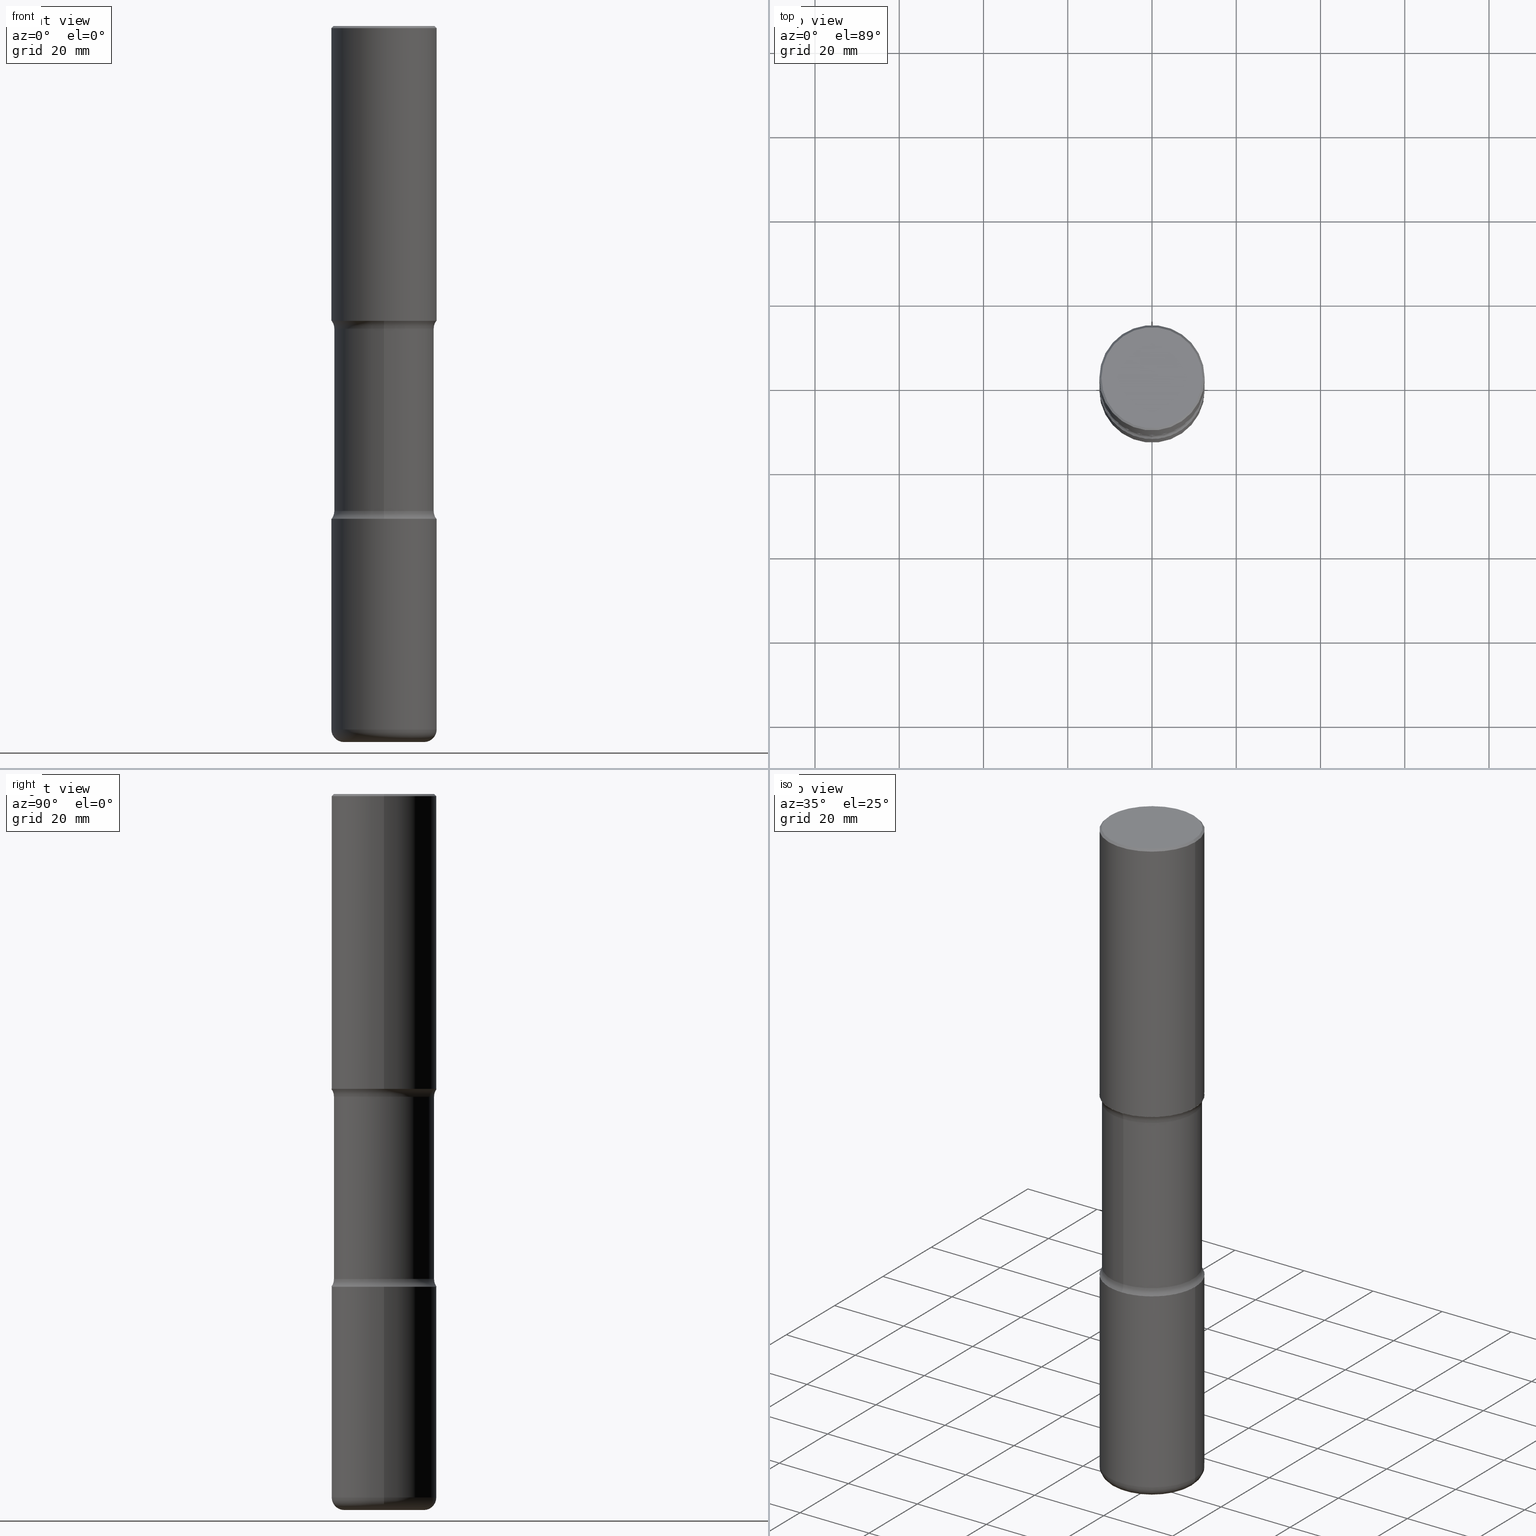
[diagram: canonical four-view strip — front | top / right | iso, engineering-drawing reading convention]
A machine part, canonical four-view strip (front | top / right | iso — engineering-drawing reading convention). The complete STEP part file that produces these views, byte-faithful:
ISO-10303-21;
HEADER;
FILE_DESCRIPTION (( 'STEP AP203' ),
    '1' );
FILE_NAME ('47783.STEP',
    '2024-03-02T09:12:17',
    ( '' ),
    ( '' ),
    'SwSTEP 2.0',
    'SolidWorks 2023',
    '' );
FILE_SCHEMA (( 'CONFIG_CONTROL_DESIGN' ));
ENDSEC;

DATA;
#1 = EDGE_CURVE ( 'NONE', #19, #558, #187, .T. ) ;
#2 = DIRECTION ( 'NONE',  ( 6.982962677686266711E-15, 1.000000000000000000, -3.506115072082477581E-15 ) ) ;
#3 = ORIENTED_EDGE ( 'NONE', *, *, #390, .F. ) ;
#4 = ADVANCED_BREP_SHAPE_REPRESENTATION ( '47783', ( #225, #81, #267, #378 ), #405 ) ;
#5 = PLANE ( 'NONE',  #96 ) ;
#6 = ORIENTED_EDGE ( 'NONE', *, *, #510, .F. ) ;
#7 = AXIS2_PLACEMENT_3D ( 'NONE', #258, #58, #434 ) ;
#8 = EDGE_CURVE ( 'NONE', #47, #467, #394, .T. ) ;
#9 = CARTESIAN_POINT ( 'NONE',  ( 1.126456296193059450E-28, -1.608281049111318039E-14, -4.606299999999999173 ) ) ;
#10 = LINE ( 'NONE', #181, #307 ) ;
#11 = EDGE_CURVE ( 'NONE', #558, #19, #62, .T. ) ;
#12 = DIRECTION ( 'NONE',  ( 1.000000000000000000, -6.982962677686266711E-15, 4.876176775795935793E-29 ) ) ;
#13 = DIRECTION ( 'NONE',  ( -2.445468806185136597E-29, 3.491481338843145583E-15, 1.000000000000000000 ) ) ;
#14 = DIRECTION ( 'NONE',  ( 2.445468806185136597E-29, -3.491481338843145583E-15, -1.000000000000000000 ) ) ;
#15 = ORIENTED_EDGE ( 'NONE', *, *, #545, .F. ) ;
#16 = AXIS2_PLACEMENT_3D ( 'NONE', #113, #159, #368 ) ;
#17 = APPROVAL_PERSON_ORGANIZATION ( #241, #493, #29 ) ;
#18 = CARTESIAN_POINT ( 'NONE',  ( -0.4921500000000002539, -1.602236492482621413E-14, -4.606299999999999173 ) ) ;
#19 = VERTEX_POINT ( 'NONE', #438 ) ;
#20 = PERSON_AND_ORGANIZATION_ROLE ( 'design_owner' ) ;
#21 = LINE ( 'NONE', #233, #417 ) ;
#22 = LINE ( 'NONE', #194, #309 ) ;
#23 = DIRECTION ( 'NONE',  ( 1.000000000000000000, -6.982962677686264344E-15, 0.000000000000000000 ) ) ;
#24 = AXIS2_PLACEMENT_3D ( 'NONE', #167, #77, #36 ) ;
#25 = CARTESIAN_POINT ( 'NONE',  ( 4.137405386529224571E-15, 0.5924999999999843725, -4.531768949423748083 ) ) ;
#26 = CARTESIAN_POINT ( 'NONE',  ( 6.826348879337702763E-29, -1.001898959365239917E-14, -2.830431050576252883 ) ) ;
#27 = APPLICATION_PROTOCOL_DEFINITION ( 'international standard', 'config_control_design', 1994, #101 ) ;
#28 = DIRECTION ( 'NONE',  ( 2.478950746902978790E-29, -3.443533294061476764E-15, -1.000000000000000000 ) ) ;
#29 = APPROVAL_ROLE ( '' ) ;
#30 = DIRECTION ( 'NONE',  ( 1.000000000000000000, -6.982962677686266711E-15, 0.000000000000000000 ) ) ;
#31 = TOROIDAL_SURFACE ( 'NONE', #106, 0.5924999999999999156, 0.1250000000000000278 ) ;
#32 = AXIS2_PLACEMENT_3D ( 'NONE', #56, #532, #406 ) ;
#33 = AXIS2_PLACEMENT_3D ( 'NONE', #50, #498, #408 ) ;
#34 = PRODUCT_DEFINITION ( 'UNKNOWN', '', #43, #325 ) ;
#35 = DIRECTION ( 'NONE',  ( 2.478950746902978790E-29, -3.443533294061476764E-15, -1.000000000000000000 ) ) ;
#36 = DIRECTION ( 'NONE',  ( 6.982962677686265922E-15, 1.000000000000000000, -2.337410048054985186E-15 ) ) ;
#37 = ORIENTED_EDGE ( 'NONE', *, *, #84, .T. ) ;
#38 = CARTESIAN_POINT ( 'NONE',  ( 0.4921500000000002539, -1.305883850354111701E-14, -2.755899999999998240 ) ) ;
#39 = ORIENTED_EDGE ( 'NONE', *, *, #123, .T. ) ;
#40 = CLOSED_SHELL ( 'NONE', ( #323, #185, #464, #202, #411, #206 ) ) ;
#41 = AXIS2_PLACEMENT_3D ( 'NONE', #549, #331, #284 ) ;
#42 = CARTESIAN_POINT ( 'NONE',  ( 6.677512499861319986E-29, -9.710896483781819618E-15, -2.755899999999998684 ) ) ;
#43 = PRODUCT_DEFINITION_FORMATION_WITH_SPECIFIED_SOURCE ( 'ANY', '', #240, .NOT_KNOWN. ) ;
#44 = EDGE_LOOP ( 'NONE', ( #255, #144, #352, #218 ) ) ;
#45 = SHAPE_DEFINITION_REPRESENTATION ( #507, #4 ) ;
#46 = CARTESIAN_POINT ( 'NONE',  ( 3.264535051818492903E-15, 0.4674999999999766009, -6.692899999999999849 ) ) ;
#47 = VERTEX_POINT ( 'NONE', #53 ) ;
#48 = CARTESIAN_POINT ( 'NONE',  ( -3.291838451780658393E-15, -0.4675000000000099076, -2.830431050576251106 ) ) ;
#49 = ORIENTED_EDGE ( 'NONE', *, *, #490, .T. ) ;
#50 = CARTESIAN_POINT ( 'NONE',  ( -4.064845063679523241E-15, -0.5925000000000161249, -4.531768949423743642 ) ) ;
#51 = CIRCLE ( 'NONE', #419, 0.4921500000000003650 ) ;
#52 = EDGE_CURVE ( 'NONE', #90, #558, #10, .T. ) ;
#53 = CARTESIAN_POINT ( 'NONE',  ( 3.436665081823409767E-15, 0.4921499999999841002, -4.606300000000000949 ) ) ;
#54 = CIRCLE ( 'NONE', #494, 0.4921500000000002539 ) ;
#55 = COORDINATED_UNIVERSAL_TIME_OFFSET ( 5, 0, .BEHIND. ) ;
#56 = CARTESIAN_POINT ( 'NONE',  ( 1.126456296193059450E-28, -1.608281049111318039E-14, -4.606299999999999173 ) ) ;
#57 = ORIENTED_EDGE ( 'NONE', *, *, #160, .T. ) ;
#58 = DIRECTION ( 'NONE',  ( -2.445468806185136597E-29, 3.491481338843145583E-15, 1.000000000000000000 ) ) ;
#59 = ORIENTED_EDGE ( 'NONE', *, *, #404, .T. ) ;
#60 = DIRECTION ( 'NONE',  ( -2.445468806185136597E-29, 3.491481338843145583E-15, 1.000000000000000000 ) ) ;
#61 = ORIENTED_EDGE ( 'NONE', *, *, #149, .T. ) ;
#62 = CIRCLE ( 'NONE', #481, 0.4921499999999999209 ) ;
#63 = DIRECTION ( 'NONE',  ( -1.000000000000000000, 6.982962677686265922E-15, 0.000000000000000000 ) ) ;
#64 = ORIENTED_EDGE ( 'NONE', *, *, #316, .F. ) ;
#65 = FACE_OUTER_BOUND ( 'NONE', #313, .T. ) ;
#66 = DIRECTION ( 'NONE',  ( 6.982962677686266711E-15, 1.000000000000000000, -3.443533294061476764E-15 ) ) ;
#67 = ADVANCED_FACE ( 'NONE', ( #542 ), #242, .T. ) ;
#68 = FACE_OUTER_BOUND ( 'NONE', #306, .T. ) ;
#69 = EDGE_CURVE ( 'NONE', #478, #386, #382, .T. ) ;
#70 = AXIS2_PLACEMENT_3D ( 'NONE', #201, #115, #283 ) ;
#71 = CIRCLE ( 'NONE', #32, 0.4921500000000002539 ) ;
#72 = FACE_OUTER_BOUND ( 'NONE', #295, .T. ) ;
#73 = DIRECTION ( 'NONE',  ( -2.445468806185136597E-29, 3.491481338843145583E-15, 1.000000000000000000 ) ) ;
#74 = CARTESIAN_POINT ( 'NONE',  ( -3.131554243005659264E-46, 4.471029511141341874E-32, 1.280553747030123384E-17 ) ) ;
#75 = ADVANCED_FACE ( 'NONE', ( #116 ), #320, .F. ) ;
#76 = AXIS2_PLACEMENT_3D ( 'NONE', #385, #388, #290 ) ;
#77 = DIRECTION ( 'NONE',  ( 2.478950746902978790E-29, -3.443533294061476764E-15, -1.000000000000000000 ) ) ;
#78 = EDGE_LOOP ( 'NONE', ( #61, #49, #259, #342 ) ) ;
#79 = CARTESIAN_POINT ( 'NONE',  ( 1.107980415843712738E-28, -1.582616033701247086E-14, -4.531768949423746307 ) ) ;
#80 = ORIENTED_EDGE ( 'NONE', *, *, #160, .F. ) ;
#81 = MANIFOLD_SOLID_BREP ( 'Body-Move/Copy2[2]', #219 ) ;
#82 = CARTESIAN_POINT ( 'NONE',  ( -0.4721499999999998476, 3.331920641658000829E-15, 1.280553747027805488E-17 ) ) ;
#83 = ORIENTED_EDGE ( 'NONE', *, *, #523, .F. ) ;
#84 = EDGE_CURVE ( 'NONE', #249, #19, #109, .T. ) ;
#85 = PERSON_AND_ORGANIZATION ( #154, #120 ) ;
#86 = AXIS2_PLACEMENT_3D ( 'NONE', #327, #410, #497 ) ;
#87 = CARTESIAN_POINT ( 'NONE',  ( 1.126456296193059450E-28, -1.608281049111318039E-14, -4.606299999999999173 ) ) ;
#88 = LOCAL_TIME ( 4, 12, 17.00000000000000000, #230 ) ;
#89 = ORIENTED_EDGE ( 'NONE', *, *, #404, .F. ) ;
#90 = VERTEX_POINT ( 'NONE', #413 ) ;
#91 = SECURITY_CLASSIFICATION_LEVEL ( 'unclassified' ) ;
#92 = CC_DESIGN_PERSON_AND_ORGANIZATION_ASSIGNMENT ( #85, #560, ( #43 ) ) ;
#93 = DIRECTION ( 'NONE',  ( 1.000000000000000000, -6.860497997771530774E-15, 4.841386073819815477E-29 ) ) ;
#94 = DIRECTION ( 'NONE',  ( -2.445468806185136597E-29, 3.491481338843145583E-15, 1.000000000000000000 ) ) ;
#95 = DIRECTION ( 'NONE',  ( 1.000000000000000000, -6.982962677686265922E-15, 4.876006802227160734E-29 ) ) ;
#96 = AXIS2_PLACEMENT_3D ( 'NONE', #223, #484, #529 ) ;
#97 = ORIENTED_EDGE ( 'NONE', *, *, #69, .T. ) ;
#98 = CARTESIAN_POINT ( 'NONE',  ( -3.376394089603194759E-15, -0.4921500000000101349, -2.755899999999997352 ) ) ;
#99 = EDGE_LOOP ( 'NONE', ( #287, #80 ) ) ;
#100 = CARTESIAN_POINT ( 'NONE',  ( 3.436665081823365591E-15, 0.4921499999999907060, -2.755900000000000460 ) ) ;
#101 = APPLICATION_CONTEXT ( 'configuration controlled 3d designs of mechanical parts and assemblies' ) ;
#102 = ORIENTED_EDGE ( 'NONE', *, *, #69, .F. ) ;
#103 = ADVANCED_FACE ( 'NONE', ( #72 ), #31, .F. ) ;
#104 = APPROVAL_DATE_TIME ( #158, #493 ) ;
#105 = ORIENTED_EDGE ( 'NONE', *, *, #367, .F. ) ;
#106 = AXIS2_PLACEMENT_3D ( 'NONE', #26, #28, #66 ) ;
#107 = CIRCLE ( 'NONE', #319, 0.4674999999999999156 ) ;
#108 = DATE_TIME_ROLE ( 'creation_date' ) ;
#109 = LINE ( 'NONE', #151, #447 ) ;
#110 = EDGE_CURVE ( 'NONE', #469, #19, #21, .T. ) ;
#111 = DIRECTION ( 'NONE',  ( 7.105427357601001859E-15, 1.000000000000000000, -3.491481338843145583E-15 ) ) ;
#112 = CARTESIAN_POINT ( 'NONE',  ( 0.4921499999999999209, -3.446223716380121955E-15, -0.02000000000000006981 ) ) ;
#113 = CARTESIAN_POINT ( 'NONE',  ( 6.826348879337702763E-29, -1.001898959365239917E-14, -2.830431050576252883 ) ) ;
#114 = AXIS2_PLACEMENT_3D ( 'NONE', #381, #250, #344 ) ;
#115 = DIRECTION ( 'NONE',  ( -2.445468806185136597E-29, 3.491481338843145583E-15, 1.000000000000000000 ) ) ;
#116 = FACE_OUTER_BOUND ( 'NONE', #232, .T. ) ;
#117 = DIRECTION ( 'NONE',  ( 6.982962677686265922E-15, 1.000000000000000000, -3.330506545156063496E-15 ) ) ;
#118 = EDGE_LOOP ( 'NONE', ( #268, #427, #450, #168 ) ) ;
#119 = VECTOR ( 'NONE', #445, 39.37007874015748143 ) ;
#120 = ORGANIZATION ( 'UNSPECIFIED', 'UNSPECIFIED', '' ) ;
#121 = DIRECTION ( 'NONE',  ( 1.000000000000000000, -6.982962677686266711E-15, 4.883557194083112901E-29 ) ) ;
#122 = EDGE_LOOP ( 'NONE', ( #393, #270, #137, #227 ) ) ;
#123 = EDGE_CURVE ( 'NONE', #90, #249, #177, .T. ) ;
#124 = DIRECTION ( 'NONE',  ( 2.478950746902978790E-29, -3.443533294061476764E-15, -1.000000000000000000 ) ) ;
#125 = ORIENTED_EDGE ( 'NONE', *, *, #375, .F. ) ;
#126 = DIRECTION ( 'NONE',  ( 6.982962677686265922E-15, 1.000000000000000000, -2.337410048054985186E-15 ) ) ;
#127 = EDGE_LOOP ( 'NONE', ( #97, #59, #476, #338 ) ) ;
#128 = AXIS2_PLACEMENT_3D ( 'NONE', #138, #60, #12 ) ;
#129 = DIRECTION ( 'NONE',  ( 2.478950746902978790E-29, -3.443533294061476764E-15, -1.000000000000000000 ) ) ;
#130 = VERTEX_POINT ( 'NONE', #238 ) ;
#131 = CC_DESIGN_PERSON_AND_ORGANIZATION_ASSIGNMENT ( #372, #20, ( #240 ) ) ;
#132 = PERSON_AND_ORGANIZATION_ROLE ( 'classification_officer' ) ;
#133 = DIRECTION ( 'NONE',  ( 6.982962677686265922E-15, 1.000000000000000000, -3.443533294061476764E-15 ) ) ;
#134 = DIRECTION ( 'NONE',  ( 6.982962677686266711E-15, 1.000000000000000000, -3.330506545156064285E-15 ) ) ;
#135 = DATE_TIME_ROLE ( 'classification_date' ) ;
#136 = CARTESIAN_POINT ( 'NONE',  ( 0.3740500000000004932, -2.598011264233184321E-14, -6.692900000000000738 ) ) ;
#137 = ORIENTED_EDGE ( 'NONE', *, *, #425, .T. ) ;
#138 = CARTESIAN_POINT ( 'NONE',  ( 0.000000000000000000, 0.000000000000000000, 0.000000000000000000 ) ) ;
#139 = AXIS2_PLACEMENT_3D ( 'NONE', #499, #150, #322 ) ;
#140 = ORIENTED_EDGE ( 'NONE', *, *, #433, .T. ) ;
#141 = LOCAL_TIME ( 4, 12, 17.00000000000000000, #182 ) ;
#142 = DIRECTION ( 'NONE',  ( -2.445468806185136877E-29, 3.491481338843145188E-15, 1.000000000000000000 ) ) ;
#143 = EDGE_CURVE ( 'NONE', #386, #478, #317, .T. ) ;
#144 = ORIENTED_EDGE ( 'NONE', *, *, #523, .T. ) ;
#145 = DIRECTION ( 'NONE',  ( 6.982962677686265133E-15, 1.000000000000000000, -3.443533294061477159E-15 ) ) ;
#146 = VERTEX_POINT ( 'NONE', #505 ) ;
#147 = DIRECTION ( 'NONE',  ( 6.982962677686266711E-15, 1.000000000000000000, -3.506115072082477581E-15 ) ) ;
#148 = CIRCLE ( 'NONE', #41, 0.1181000000000000383 ) ;
#149 = EDGE_CURVE ( 'NONE', #146, #431, #297, .T. ) ;
#150 = DIRECTION ( 'NONE',  ( -2.445468806185136597E-29, 3.491481338843145583E-15, 1.000000000000000000 ) ) ;
#151 = CARTESIAN_POINT ( 'NONE',  ( -0.4921499999999999209, 3.366835455046432084E-15, -0.02000000000000006981 ) ) ;
#152 = APPLICATION_PROTOCOL_DEFINITION ( 'international standard', 'config_control_design', 1994, #155 ) ;
#153 = DIRECTION ( 'NONE',  ( -2.445468806185136877E-29, 3.491481338843145188E-15, 1.000000000000000000 ) ) ;
#154 = PERSON ( 'UNSPECIFIED', 'UNSPECIFIED', 'UNSPECIFIED', ('UNSPECIFIED'), ('UNSPECIFIED'), ('UNSPECIFIED') ) ;
#155 = APPLICATION_CONTEXT ( 'configuration controlled 3d designs of mechanical parts and assemblies' ) ;
#156 = VECTOR ( 'NONE', #335, 39.37007874015748143 ) ;
#157 = CC_DESIGN_APPROVAL ( #493, ( #34 ) ) ;
#158 = DATE_AND_TIME ( #374, #548 ) ;
#159 = DIRECTION ( 'NONE',  ( 2.478950746902978790E-29, -3.443533294061476764E-15, -1.000000000000000000 ) ) ;
#160 = EDGE_CURVE ( 'NONE', #469, #215, #54, .T. ) ;
#161 = DIRECTION ( 'NONE',  ( 1.000000000000000000, -6.982962677686265922E-15, 4.876176775795935793E-29 ) ) ;
#162 = PLANE ( 'NONE',  #189 ) ;
#163 = EDGE_CURVE ( 'NONE', #400, #554, #289, .T. ) ;
#164 = ORIENTED_EDGE ( 'NONE', *, *, #8, .T. ) ;
#165 = AXIS2_PLACEMENT_3D ( 'NONE', #190, #13, #358 ) ;
#166 = VECTOR ( 'NONE', #142, 39.37007874015748143 ) ;
#167 = CARTESIAN_POINT ( 'NONE',  ( 1.643714159041834644E-28, -2.326808706250185533E-14, -6.692899999999998961 ) ) ;
#168 = ORIENTED_EDGE ( 'NONE', *, *, #265, .F. ) ;
#169 = PERSON_AND_ORGANIZATION ( #154, #120 ) ;
#170 = FACE_OUTER_BOUND ( 'NONE', #315, .T. ) ;
#171 = ORIENTED_EDGE ( 'NONE', *, *, #123, .F. ) ;
#172 = COORDINATED_UNIVERSAL_TIME_OFFSET ( 5, 0, .BEHIND. ) ;
#173 = ADVANCED_FACE ( 'NONE', ( #324 ), #244, .F. ) ;
#174 = CARTESIAN_POINT ( 'NONE',  ( 0.000000000000000000, 0.000000000000000000, 0.000000000000000000 ) ) ;
#175 = EDGE_CURVE ( 'NONE', #400, #146, #148, .T. ) ;
#176 = ORIENTED_EDGE ( 'NONE', *, *, #390, .T. ) ;
#177 = CIRCLE ( 'NONE', #492, 0.4721499999999998476 ) ;
#178 = FACE_OUTER_BOUND ( 'NONE', #266, .T. ) ;
#179 = VERTEX_POINT ( 'NONE', #459 ) ;
#180 = DIRECTION ( 'NONE',  ( 1.000000000000000000, -6.982962677686270655E-15, 0.000000000000000000 ) ) ;
#181 = CARTESIAN_POINT ( 'NONE',  ( 0.4921499999999999209, -3.446223716380121955E-15, -0.02000000000000006981 ) ) ;
#182 = COORDINATED_UNIVERSAL_TIME_OFFSET ( 5, 0, .BEHIND. ) ;
#183 = DIRECTION ( 'NONE',  ( -2.445468806185136597E-29, 3.491481338843145583E-15, 1.000000000000000000 ) ) ;
#184 = ORIENTED_EDGE ( 'NONE', *, *, #163, .T. ) ;
#185 = ADVANCED_FACE ( 'NONE', ( #540 ), #288, .T. ) ;
#186 = EDGE_CURVE ( 'NONE', #554, #431, #531, .T. ) ;
#187 = CIRCLE ( 'NONE', #165, 0.4921499999999999209 ) ;
#188 = DIRECTION ( 'NONE',  ( -1.000000000000000000, 6.982962677686265922E-15, 0.000000000000000000 ) ) ;
#189 = AXIS2_PLACEMENT_3D ( 'NONE', #512, #359, #397 ) ;
#190 = CARTESIAN_POINT ( 'NONE',  ( 4.890937612370289799E-31, -6.982962677686315028E-17, -0.02000000000000006981 ) ) ;
#191 = LOCAL_TIME ( 4, 12, 17.00000000000000000, #172 ) ;
#192 = CARTESIAN_POINT ( 'NONE',  ( 4.890937612370289799E-31, -6.982962677686315028E-17, -0.02000000000000006981 ) ) ;
#193 = ORIENTED_EDGE ( 'NONE', *, *, #11, .F. ) ;
#194 = CARTESIAN_POINT ( 'NONE',  ( 0.4921500000000000874, -3.436665081823296565E-15, 2.399810400207970163E-29 ) ) ;
#195 = DIRECTION ( 'NONE',  ( 6.982962677686266711E-15, 1.000000000000000000, -3.506115072082477581E-15 ) ) ;
#196 = ADVANCED_FACE ( 'NONE', ( #68 ), #235, .T. ) ;
#197 = AXIS2_PLACEMENT_3D ( 'NONE', #199, #371, #126 ) ;
#198 = DIRECTION ( 'NONE',  ( -2.445468806185136877E-29, 3.491481338843145188E-15, 1.000000000000000000 ) ) ;
#199 = CARTESIAN_POINT ( 'NONE',  ( 1.643714159041834644E-28, -2.326808706250185533E-14, -6.692899999999998961 ) ) ;
#200 = MECHANICAL_CONTEXT ( 'NONE', #101, 'mechanical' ) ;
#201 = CARTESIAN_POINT ( 'NONE',  ( 0.000000000000000000, 0.000000000000000000, 0.000000000000000000 ) ) ;
#202 = ADVANCED_FACE ( 'NONE', ( #430 ), #262, .T. ) ;
#203 = CARTESIAN_POINT ( 'NONE',  ( 1.636727817291650190E-28, -2.336813545274329412E-14, -6.692900000000000738 ) ) ;
#204 = FACE_OUTER_BOUND ( 'NONE', #78, .T. ) ;
#205 = FACE_OUTER_BOUND ( 'NONE', #509, .T. ) ;
#206 = ADVANCED_FACE ( 'NONE', ( #426 ), #379, .F. ) ;
#207 = DIRECTION ( 'NONE',  ( 1.000000000000000000, -6.982962677686266711E-15, 4.876176775795935793E-29 ) ) ;
#208 = ORIENTED_EDGE ( 'NONE', *, *, #149, .F. ) ;
#209 = CIRCLE ( 'NONE', #7, 0.4921500000000005315 ) ;
#210 = AXIS2_PLACEMENT_3D ( 'NONE', #330, #365, #63 ) ;
#211 = LINE ( 'NONE', #46, #156 ) ;
#212 = ORIENTED_EDGE ( 'NONE', *, *, #8, .F. ) ;
#213 = PERSON_AND_ORGANIZATION ( #154, #120 ) ;
#214 = DIRECTION ( 'NONE',  ( -6.982962677686265133E-15, -1.000000000000000000, 0.000000000000000000 ) ) ;
#215 = VERTEX_POINT ( 'NONE', #38 ) ;
#216 = ADVANCED_FACE ( 'NONE', ( #170 ), #517, .T. ) ;
#217 = FACE_OUTER_BOUND ( 'NONE', #486, .T. ) ;
#218 = ORIENTED_EDGE ( 'NONE', *, *, #543, .F. ) ;
#219 = CLOSED_SHELL ( 'NONE', ( #216, #485, #536, #360, #231, #67 ) ) ;
#220 = TOROIDAL_SURFACE ( 'NONE', #439, 0.5925000000000002487, 0.1250000000000001943 ) ;
#221 = LINE ( 'NONE', #348, #166 ) ;
#222 = ORIENTED_EDGE ( 'NONE', *, *, #265, .T. ) ;
#223 = CARTESIAN_POINT ( 'NONE',  ( -1.093952849025738118E-28, -6.247303680132347526E-14, -6.692899999999999849 ) ) ;
#224 = ORIENTED_EDGE ( 'NONE', *, *, #186, .F. ) ;
#225 = MANIFOLD_SOLID_BREP ( 'Body-Move/Copy2[1]', #40 ) ;
#226 = DIRECTION ( 'NONE',  ( -2.445468806185136877E-29, 3.491481338843145188E-15, 1.000000000000000000 ) ) ;
#227 = ORIENTED_EDGE ( 'NONE', *, *, #433, .F. ) ;
#228 = ORIENTED_EDGE ( 'NONE', *, *, #257, .F. ) ;
#229 = APPROVAL_PERSON_ORGANIZATION ( #470, #369, #304 ) ;
#230 = COORDINATED_UNIVERSAL_TIME_OFFSET ( 5, 0, .BEHIND. ) ;
#231 = ADVANCED_FACE ( 'NONE', ( #380 ), #551, .F. ) ;
#232 = EDGE_LOOP ( 'NONE', ( #164, #361 ) ) ;
#233 = CARTESIAN_POINT ( 'NONE',  ( -0.4921500000000000874, 3.496936074043333686E-15, -2.420853904668952350E-29 ) ) ;
#234 =( CONVERSION_BASED_UNIT ( 'INCH', #454 ) LENGTH_UNIT ( ) NAMED_UNIT ( #299 ) );
#235 = CYLINDRICAL_SURFACE ( 'NONE', #197, 0.4674999999999998601 ) ;
#236 = AXIS2_PLACEMENT_3D ( 'NONE', #192, #14, #188 ) ;
#237 = DIRECTION ( 'NONE',  ( 1.000000000000000000, 0.000000000000000000, 0.000000000000000000 ) ) ;
#238 = CARTESIAN_POINT ( 'NONE',  ( -3.291838451780614217E-15, -0.4675000000000157918, -4.531768949423744530 ) ) ;
#239 = EDGE_CURVE ( 'NONE', #179, #130, #107, .T. ) ;
#240 = PRODUCT ( '47783', '47783', '', ( #200 ) ) ;
#241 = PERSON_AND_ORGANIZATION ( #154, #120 ) ;
#242 = CYLINDRICAL_SURFACE ( 'NONE', #70, 0.4921500000000000874 ) ;
#243 = CARTESIAN_POINT ( 'NONE',  ( -0.3740500000000004932, -2.029800640351526055E-14, -6.574800000000001532 ) ) ;
#244 = TOROIDAL_SURFACE ( 'NONE', #16, 0.5924999999999999156, 0.1250000000000000278 ) ;
#245 = CC_DESIGN_PERSON_AND_ORGANIZATION_ASSIGNMENT ( #213, #343, ( #43 ) ) ;
#246 = CYLINDRICAL_SURFACE ( 'NONE', #24, 0.4674999999999998601 ) ;
#247 = EDGE_LOOP ( 'NONE', ( #224, #274, #293, #105 ) ) ;
#248 = CARTESIAN_POINT ( 'NONE',  ( 6.677512499861319986E-29, -9.710896483781819618E-15, -2.755899999999998684 ) ) ;
#249 = VERTEX_POINT ( 'NONE', #82 ) ;
#250 = DIRECTION ( 'NONE',  ( 2.478950746902978790E-29, -3.443533294061476764E-15, -1.000000000000000000 ) ) ;
#251 = ORIENTED_EDGE ( 'NONE', *, *, #239, .T. ) ;
#252 = APPROVAL_DATE_TIME ( #301, #369 ) ;
#253 = AXIS2_PLACEMENT_3D ( 'NONE', #421, #508, #121 ) ;
#254 = CYLINDRICAL_SURFACE ( 'NONE', #547, 0.4921500000000003650 ) ;
#255 = ORIENTED_EDGE ( 'NONE', *, *, #332, .F. ) ;
#256 = UNCERTAINTY_MEASURE_WITH_UNIT (LENGTH_MEASURE( 1.000000000000000082E-05 ), #234, 'distance_accuracy_value', 'NONE');
#257 = EDGE_CURVE ( 'NONE', #398, #383, #355, .T. ) ;
#258 = CARTESIAN_POINT ( 'NONE',  ( 1.607846830690603690E-28, -2.295579150662591841E-14, -6.574800000000001532 ) ) ;
#259 = ORIENTED_EDGE ( 'NONE', *, *, #444, .F. ) ;
#260 = DIRECTION ( 'NONE',  ( 2.478950746902978509E-29, -3.443533294061476764E-15, -1.000000000000000000 ) ) ;
#261 = DIRECTION ( 'NONE',  ( 1.000000000000000000, -6.982962677686265922E-15, 0.000000000000000000 ) ) ;
#262 = TOROIDAL_SURFACE ( 'NONE', #253, 0.3740500000000004932, 0.1181000000000000383 ) ;
#263 = CIRCLE ( 'NONE', #33, 0.1250000000000001665 ) ;
#264 = LINE ( 'NONE', #440, #522 ) ;
#265 = EDGE_CURVE ( 'NONE', #478, #398, #395, .T. ) ;
#266 = EDGE_LOOP ( 'NONE', ( #171, #518, #472, #435 ) ) ;
#267 = MANIFOLD_SOLID_BREP ( 'Body-Move/Copy2[4]', #280 ) ;
#268 = ORIENTED_EDGE ( 'NONE', *, *, #143, .F. ) ;
#269 = LINE ( 'NONE', #442, #119 ) ;
#270 = ORIENTED_EDGE ( 'NONE', *, *, #367, .T. ) ;
#271 = EDGE_CURVE ( 'NONE', #130, #179, #511, .T. ) ;
#272 = COORDINATED_UNIVERSAL_TIME_OFFSET ( 5, 0, .BEHIND. ) ;
#273 = CIRCLE ( 'NONE', #364, 0.4921500000000002539 ) ;
#274 = ORIENTED_EDGE ( 'NONE', *, *, #375, .T. ) ;
#275 = CIRCLE ( 'NONE', #396, 0.1250000000000000278 ) ;
#276 = PERSON_AND_ORGANIZATION ( #154, #120 ) ;
#277 = DIRECTION ( 'NONE',  ( -0.7071067811865471286, 2.468850131082252722E-15, -0.7071067811865479058 ) ) ;
#278 = CARTESIAN_POINT ( 'NONE',  ( 6.739467482965614869E-29, -9.622173421717819657E-15, -2.755899999999998240 ) ) ;
#279 =( LENGTH_UNIT ( ) NAMED_UNIT ( * ) SI_UNIT ( $, .METRE. ) );
#280 = CLOSED_SHELL ( 'NONE', ( #350, #340, #173, #103, #506, #75, #416, #196 ) ) ;
#281 = DIRECTION ( 'NONE',  ( 2.478950746902978790E-29, -3.443533294061476764E-15, -1.000000000000000000 ) ) ;
#282 = CIRCLE ( 'NONE', #337, 0.3740500000000004932 ) ;
#283 = DIRECTION ( 'NONE',  ( 1.000000000000000000, -6.982962677686265922E-15, 4.876176775795935793E-29 ) ) ;
#284 = DIRECTION ( 'NONE',  ( 1.000000000000000000, -6.982962677686270655E-15, 0.000000000000000000 ) ) ;
#285 = APPROVAL ( #451, 'UNSPECIFIED' ) ;
#286 = FACE_OUTER_BOUND ( 'NONE', #127, .T. ) ;
#287 = ORIENTED_EDGE ( 'NONE', *, *, #528, .F. ) ;
#288 = TOROIDAL_SURFACE ( 'NONE', #139, 0.3740500000000004932, 0.1181000000000000383 ) ;
#289 = CIRCLE ( 'NONE', #448, 0.3740500000000004932 ) ;
#290 = DIRECTION ( 'NONE',  ( -1.000000000000000000, 6.982962677686265922E-15, -4.876176775795935793E-29 ) ) ;
#291 = EDGE_LOOP ( 'NONE', ( #83, #212, #402, #251 ) ) ;
#292 = DIRECTION ( 'NONE',  ( 1.000000000000000000, -6.982962677686265922E-15, 4.876176775795935793E-29 ) ) ;
#293 = ORIENTED_EDGE ( 'NONE', *, *, #175, .T. ) ;
#294 = DIRECTION ( 'NONE',  ( 2.478950746902978790E-29, -3.443533294061476764E-15, -1.000000000000000000 ) ) ;
#295 = EDGE_LOOP ( 'NONE', ( #6, #102, #222, #311 ) ) ;
#296 = EDGE_CURVE ( 'NONE', #478, #179, #211, .T. ) ;
#297 = CIRCLE ( 'NONE', #86, 0.4921500000000005315 ) ;
#298 = DIRECTION ( 'NONE',  ( 6.982962677686266711E-15, 1.000000000000000000, -3.330506545156064285E-15 ) ) ;
#299 = DIMENSIONAL_EXPONENTS ( 1.000000000000000000, 0.000000000000000000, 0.000000000000000000, 0.000000000000000000, 0.000000000000000000, 0.000000000000000000, 0.000000000000000000 ) ;
#300 = VERTEX_POINT ( 'NONE', #423 ) ;
#301 = DATE_AND_TIME ( #432, #141 ) ;
#302 = CARTESIAN_POINT ( 'NONE',  ( 4.603020045655095245E-29, -1.268168775098301850E-14, -2.755899999999998684 ) ) ;
#303 = CARTESIAN_POINT ( 'NONE',  ( 4.890937612370289799E-31, -6.982962677686315028E-17, -0.02000000000000006981 ) ) ;
#304 = APPROVAL_ROLE ( '' ) ;
#305 = CARTESIAN_POINT ( 'NONE',  ( -3.131554243005659264E-46, 4.471029511141341874E-32, 1.280553747030123384E-17 ) ) ;
#306 = EDGE_LOOP ( 'NONE', ( #89, #488, #491, #480 ) ) ;
#307 = VECTOR ( 'NONE', #527, 39.37007874015748143 ) ;
#308 = AXIS2_PLACEMENT_3D ( 'NONE', #475, #471, #214 ) ;
#309 = VECTOR ( 'NONE', #198, 39.37007874015748143 ) ;
#310 = CARTESIAN_POINT ( 'NONE',  ( -0.4921500000000002539, -1.349065450204005425E-15, -2.755899999999998240 ) ) ;
#311 = ORIENTED_EDGE ( 'NONE', *, *, #257, .T. ) ;
#312 = FACE_OUTER_BOUND ( 'NONE', #535, .T. ) ;
#313 = EDGE_LOOP ( 'NONE', ( #422, #3, #37, #441 ) ) ;
#314 = DIRECTION ( 'NONE',  ( -2.445468806185136597E-29, 3.491481338843145583E-15, 1.000000000000000000 ) ) ;
#315 = EDGE_LOOP ( 'NONE', ( #463, #424, #193, #15 ) ) ;
#316 = EDGE_CURVE ( 'NONE', #383, #398, #51, .T. ) ;
#317 = CIRCLE ( 'NONE', #460, 0.4674999999999999156 ) ;
#318 = DATE_AND_TIME ( #362, #88 ) ;
#319 = AXIS2_PLACEMENT_3D ( 'NONE', #79, #294, #2 ) ;
#320 = PLANE ( 'NONE',  #403 ) ;
#321 = APPROVAL_STATUS ( 'not_yet_approved' ) ;
#322 = DIRECTION ( 'NONE',  ( 1.000000000000000000, -6.982962677686266711E-15, 4.883557194083112901E-29 ) ) ;
#323 = ADVANCED_FACE ( 'NONE', ( #204 ), #254, .T. ) ;
#324 = FACE_OUTER_BOUND ( 'NONE', #118, .T. ) ;
#325 = DESIGN_CONTEXT ( 'detailed design', #155, 'design' ) ;
#326 = DIRECTION ( 'NONE',  ( 1.000000000000000000, -6.982962677686266711E-15, 0.000000000000000000 ) ) ;
#327 = CARTESIAN_POINT ( 'NONE',  ( 1.607846830690603690E-28, -2.295579150662591841E-14, -6.574800000000001532 ) ) ;
#328 = AXIS2_PLACEMENT_3D ( 'NONE', #248, #124, #333 ) ;
#329 = CIRCLE ( 'NONE', #557, 0.1250000000000001665 ) ;
#330 = CARTESIAN_POINT ( 'NONE',  ( 4.890937612370289799E-31, -6.982962677686315028E-17, -0.02000000000000006981 ) ) ;
#331 = DIRECTION ( 'NONE',  ( -6.982962677686266711E-15, -1.000000000000000000, 3.491481338843145583E-15 ) ) ;
#332 = EDGE_CURVE ( 'NONE', #467, #47, #273, .T. ) ;
#333 = DIRECTION ( 'NONE',  ( 6.982962677686265922E-15, 1.000000000000000000, -3.330506545156063496E-15 ) ) ;
#334 = ORIENTED_EDGE ( 'NONE', *, *, #1, .F. ) ;
#335 = DIRECTION ( 'NONE',  ( 2.478950746902979070E-29, -3.443533294061476764E-15, -1.000000000000000000 ) ) ;
#336 = EDGE_LOOP ( 'NONE', ( #521, #57, #533, #334 ) ) ;
#337 = AXIS2_PLACEMENT_3D ( 'NONE', #399, #183, #487 ) ;
#338 = ORIENTED_EDGE ( 'NONE', *, *, #296, .F. ) ;
#339 = APPROVAL_STATUS ( 'not_yet_approved' ) ;
#340 = ADVANCED_FACE ( 'NONE', ( #553 ), #428, .F. ) ;
#341 = DIRECTION ( 'NONE',  ( 2.478950746902978790E-29, -3.443533294061476764E-15, -1.000000000000000000 ) ) ;
#342 = ORIENTED_EDGE ( 'NONE', *, *, #425, .F. ) ;
#343 = PERSON_AND_ORGANIZATION_ROLE ( 'creator' ) ;
#344 = DIRECTION ( 'NONE',  ( 6.982962677686266711E-15, 1.000000000000000000, -3.506115072082477581E-15 ) ) ;
#345 = DATE_AND_TIME ( #387, #191 ) ;
#346 = CIRCLE ( 'NONE', #539, 0.4921500000000002539 ) ;
#347 = CIRCLE ( 'NONE', #366, 0.4921500000000002539 ) ;
#348 = CARTESIAN_POINT ( 'NONE',  ( -0.4921500000000003650, 3.496936074043335658E-15, -2.420853904668953751E-29 ) ) ;
#349 = CARTESIAN_POINT ( 'NONE',  ( 1.126456296193059450E-28, -1.608281049111318039E-14, -4.606299999999999173 ) ) ;
#350 = ADVANCED_FACE ( 'NONE', ( #286 ), #246, .T. ) ;
#351 = CARTESIAN_POINT ( 'NONE',  ( 1.103460862120198560E-28, -1.589088291870342293E-14, -4.531768949423746307 ) ) ;
#352 = ORIENTED_EDGE ( 'NONE', *, *, #271, .T. ) ;
#353 = FACE_OUTER_BOUND ( 'NONE', #291, .T. ) ;
#354 = ORIENTED_EDGE ( 'NONE', *, *, #163, .F. ) ;
#355 = CIRCLE ( 'NONE', #328, 0.4921500000000003650 ) ;
#356 = APPROVAL_PERSON_ORGANIZATION ( #276, #285, #409 ) ;
#357 = FACE_OUTER_BOUND ( 'NONE', #122, .T. ) ;
#358 = DIRECTION ( 'NONE',  ( 1.000000000000000000, -6.982962677686265922E-15, 0.000000000000000000 ) ) ;
#359 = DIRECTION ( 'NONE',  ( 2.438088387897960049E-29, -3.491481338843145188E-15, -1.000000000000000000 ) ) ;
#360 = ADVANCED_FACE ( 'NONE', ( #205 ), #162, .F. ) ;
#361 = ORIENTED_EDGE ( 'NONE', *, *, #332, .T. ) ;
#362 = CALENDAR_DATE ( 2024, 2, 3 ) ;
#363 = DIRECTION ( 'NONE',  ( -6.982962677686265922E-15, -1.000000000000000000, 3.443533294061476764E-15 ) ) ;
#364 = AXIS2_PLACEMENT_3D ( 'NONE', #87, #129, #298 ) ;
#365 = DIRECTION ( 'NONE',  ( 2.445468806185136597E-29, -3.491481338843145583E-15, -1.000000000000000000 ) ) ;
#366 = AXIS2_PLACEMENT_3D ( 'NONE', #544, #73, #326 ) ;
#367 = EDGE_CURVE ( 'NONE', #431, #146, #209, .T. ) ;
#368 = DIRECTION ( 'NONE',  ( 6.982962677686266711E-15, 1.000000000000000000, -3.443533294061476764E-15 ) ) ;
#369 = APPROVAL ( #339, 'UNSPECIFIED' ) ;
#370 = CARTESIAN_POINT ( 'NONE',  ( 0.000000000000000000, 0.000000000000000000, 0.000000000000000000 ) ) ;
#371 = DIRECTION ( 'NONE',  ( 2.478950746902978790E-29, -3.443533294061476764E-15, -1.000000000000000000 ) ) ;
#372 = PERSON_AND_ORGANIZATION ( #154, #120 ) ;
#373 = CARTESIAN_POINT ( 'NONE',  ( 6.862271303354788236E-29, -9.967546637882530720E-15, -2.830431050576252883 ) ) ;
#374 = CALENDAR_DATE ( 2024, 2, 3 ) ;
#375 = EDGE_CURVE ( 'NONE', #554, #400, #282, .T. ) ;
#376 = DIRECTION ( 'NONE',  ( -2.445468806185136597E-29, 3.491481338843145583E-15, 1.000000000000000000 ) ) ;
#377 = AXIS2_PLACEMENT_3D ( 'NONE', #305, #479, #95 ) ;
#378 = AXIS2_PLACEMENT_3D ( 'NONE', #370, #414, #237 ) ;
#379 = PLANE ( 'NONE',  #76 ) ;
#380 = FACE_OUTER_BOUND ( 'NONE', #99, .T. ) ;
#381 = CARTESIAN_POINT ( 'NONE',  ( 1.107980415843712738E-28, -1.582616033701247086E-14, -4.531768949423746307 ) ) ;
#382 = CIRCLE ( 'NONE', #502, 0.4674999999999999156 ) ;
#383 = VERTEX_POINT ( 'NONE', #98 ) ;
#384 = AXIS2_PLACEMENT_3D ( 'NONE', #468, #515, #292 ) ;
#385 = CARTESIAN_POINT ( 'NONE',  ( 1.126456296193059450E-28, -1.608281049111318039E-14, -4.606299999999999173 ) ) ;
#386 = VERTEX_POINT ( 'NONE', #48 ) ;
#387 = CALENDAR_DATE ( 2024, 2, 3 ) ;
#388 = DIRECTION ( 'NONE',  ( 2.438088387897960049E-29, -3.491481338843145188E-15, -1.000000000000000000 ) ) ;
#389 = CALENDAR_DATE ( 2024, 2, 3 ) ;
#390 = EDGE_CURVE ( 'NONE', #249, #90, #462, .T. ) ;
#391 = CARTESIAN_POINT ( 'NONE',  ( -3.376394089603147821E-15, -0.4921500000000163522, -4.606299999999997397 ) ) ;
#392 = CC_DESIGN_DATE_AND_TIME_ASSIGNMENT ( #318, #108, ( #34 ) ) ;
#393 = ORIENTED_EDGE ( 'NONE', *, *, #490, .F. ) ;
#394 = CIRCLE ( 'NONE', #520, 0.4921500000000002539 ) ;
#395 = CIRCLE ( 'NONE', #308, 0.1250000000000000278 ) ;
#396 = AXIS2_PLACEMENT_3D ( 'NONE', #477, #93, #437 ) ;
#397 = DIRECTION ( 'NONE',  ( -1.000000000000000000, 6.982962677686265922E-15, -4.876176775795935793E-29 ) ) ;
#398 = VERTEX_POINT ( 'NONE', #100 ) ;
#399 = CARTESIAN_POINT ( 'NONE',  ( 1.636727817291650190E-28, -2.336813545274329412E-14, -6.692900000000000738 ) ) ;
#400 = VERTEX_POINT ( 'NONE', #136 ) ;
#401 = CARTESIAN_POINT ( 'NONE',  ( 3.264535051818397450E-15, 0.4674999999999899791, -2.830431050576254215 ) ) ;
#402 = ORIENTED_EDGE ( 'NONE', *, *, #543, .T. ) ;
#403 = AXIS2_PLACEMENT_3D ( 'NONE', #546, #458, #363 ) ;
#404 = EDGE_CURVE ( 'NONE', #386, #130, #269, .T. ) ;
#405 =( GEOMETRIC_REPRESENTATION_CONTEXT ( 3 ) GLOBAL_UNCERTAINTY_ASSIGNED_CONTEXT ( ( #256 ) ) GLOBAL_UNIT_ASSIGNED_CONTEXT ( ( #234, #457, #541 ) ) REPRESENTATION_CONTEXT ( 'NONE', 'WORKASPACE' ) );
#406 = DIRECTION ( 'NONE',  ( 1.000000000000000000, -6.982962677686270655E-15, 0.000000000000000000 ) ) ;
#407 = ORIENTED_EDGE ( 'NONE', *, *, #175, .F. ) ;
#408 = DIRECTION ( 'NONE',  ( 6.860497997771532351E-15, 1.000000000000000000, 0.000000000000000000 ) ) ;
#409 = APPROVAL_ROLE ( '' ) ;
#410 = DIRECTION ( 'NONE',  ( -2.445468806185136597E-29, 3.491481338843145583E-15, 1.000000000000000000 ) ) ;
#411 = ADVANCED_FACE ( 'NONE', ( #357 ), #534, .T. ) ;
#412 = DIRECTION ( 'NONE',  ( 1.000000000000000000, -6.982962677686265922E-15, 4.876006802227160734E-29 ) ) ;
#413 = CARTESIAN_POINT ( 'NONE',  ( 0.4721499999999998476, -3.342703923013974974E-15, 1.280553747032445131E-17 ) ) ;
#414 = DIRECTION ( 'NONE',  ( 0.000000000000000000, 0.000000000000000000, 1.000000000000000000 ) ) ;
#415 = DIRECTION ( 'NONE',  ( -2.445468806185136597E-29, 3.491481338843145583E-15, 1.000000000000000000 ) ) ;
#416 = ADVANCED_FACE ( 'NONE', ( #353 ), #220, .F. ) ;
#417 = VECTOR ( 'NONE', #153, 39.37007874015748143 ) ;
#418 = CARTESIAN_POINT ( 'NONE',  ( 6.739467482965614869E-29, -9.622173421717819657E-15, -2.755899999999998240 ) ) ;
#419 = AXIS2_PLACEMENT_3D ( 'NONE', #42, #35, #117 ) ;
#420 = CC_DESIGN_APPROVAL ( #369, ( #495 ) ) ;
#421 = CARTESIAN_POINT ( 'NONE',  ( 1.607846830690603690E-28, -2.295579150662591841E-14, -6.574800000000001532 ) ) ;
#422 = ORIENTED_EDGE ( 'NONE', *, *, #52, .F. ) ;
#423 = CARTESIAN_POINT ( 'NONE',  ( 0.4921500000000002539, -1.951947557293647774E-14, -4.606299999999999173 ) ) ;
#424 = ORIENTED_EDGE ( 'NONE', *, *, #110, .T. ) ;
#425 = EDGE_CURVE ( 'NONE', #146, #300, #264, .T. ) ;
#426 = FACE_OUTER_BOUND ( 'NONE', #443, .T. ) ;
#427 = ORIENTED_EDGE ( 'NONE', *, *, #510, .T. ) ;
#428 = TOROIDAL_SURFACE ( 'NONE', #473, 0.5925000000000002487, 0.1250000000000001943 ) ;
#429 = LOCAL_TIME ( 4, 12, 17.00000000000000000, #55 ) ;
#430 = FACE_OUTER_BOUND ( 'NONE', #247, .T. ) ;
#431 = VERTEX_POINT ( 'NONE', #489 ) ;
#432 = CALENDAR_DATE ( 2024, 2, 3 ) ;
#433 = EDGE_CURVE ( 'NONE', #446, #300, #71, .T. ) ;
#434 = DIRECTION ( 'NONE',  ( 1.000000000000000000, -6.982962677686266711E-15, 0.000000000000000000 ) ) ;
#435 = ORIENTED_EDGE ( 'NONE', *, *, #84, .F. ) ;
#436 = DATE_AND_TIME ( #389, #429 ) ;
#437 = DIRECTION ( 'NONE',  ( 6.860497997771528407E-15, 1.000000000000000000, 0.000000000000000000 ) ) ;
#438 = CARTESIAN_POINT ( 'NONE',  ( -0.4921499999999999209, 3.366835455046432084E-15, -0.02000000000000006981 ) ) ;
#439 = AXIS2_PLACEMENT_3D ( 'NONE', #351, #526, #145 ) ;
#440 = CARTESIAN_POINT ( 'NONE',  ( 0.4921500000000003650, -3.436665081823298538E-15, 2.399810400207971564E-29 ) ) ;
#441 = ORIENTED_EDGE ( 'NONE', *, *, #1, .T. ) ;
#442 = CARTESIAN_POINT ( 'NONE',  ( -3.207282813958025392E-15, -0.4675000000000231748, -6.692899999999998073 ) ) ;
#443 = EDGE_LOOP ( 'NONE', ( #559, #140 ) ) ;
#444 = EDGE_CURVE ( 'NONE', #300, #446, #346, .T. ) ;
#445 = DIRECTION ( 'NONE',  ( 2.478950746902979070E-29, -3.443533294061476764E-15, -1.000000000000000000 ) ) ;
#446 = VERTEX_POINT ( 'NONE', #18 ) ;
#447 = VECTOR ( 'NONE', #277, 39.37007874015748143 ) ;
#448 = AXIS2_PLACEMENT_3D ( 'NONE', #203, #376, #23 ) ;
#449 = PERSON_AND_ORGANIZATION_ROLE ( 'creator' ) ;
#450 = ORIENTED_EDGE ( 'NONE', *, *, #316, .T. ) ;
#451 = APPROVAL_STATUS ( 'not_yet_approved' ) ;
#452 = CC_DESIGN_DATE_AND_TIME_ASSIGNMENT ( #436, #135, ( #495 ) ) ;
#453 = DIRECTION ( 'NONE',  ( -2.445468806185136597E-29, 3.491481338843145583E-15, 1.000000000000000000 ) ) ;
#454 = LENGTH_MEASURE_WITH_UNIT ( LENGTH_MEASURE( 0.02539999999999999897 ), #279 );
#455 = DIRECTION ( 'NONE',  ( -1.000000000000000000, 7.105427357601001859E-15, 0.000000000000000000 ) ) ;
#456 = AXIS2_PLACEMENT_3D ( 'NONE', #418, #466, #161 ) ;
#457 =( NAMED_UNIT ( * ) PLANE_ANGLE_UNIT ( ) SI_UNIT ( $, .RADIAN. ) );
#458 = DIRECTION ( 'NONE',  ( -2.478950746902978509E-29, 3.443533294061476764E-15, 1.000000000000000000 ) ) ;
#459 = CARTESIAN_POINT ( 'NONE',  ( 3.264535051818439654E-15, 0.4674999999999840949, -4.531768949423748083 ) ) ;
#460 = AXIS2_PLACEMENT_3D ( 'NONE', #538, #501, #147 ) ;
#461 = DIRECTION ( 'NONE',  ( 6.982962677686265133E-15, 1.000000000000000000, -3.443533294061477159E-15 ) ) ;
#462 = CIRCLE ( 'NONE', #377, 0.4721499999999998476 ) ;
#463 = ORIENTED_EDGE ( 'NONE', *, *, #528, .T. ) ;
#464 = ADVANCED_FACE ( 'NONE', ( #217 ), #5, .T. ) ;
#465 = CC_DESIGN_PERSON_AND_ORGANIZATION_ASSIGNMENT ( #537, #449, ( #34 ) ) ;
#466 = DIRECTION ( 'NONE',  ( -2.438088387897960049E-29, 3.491481338843145188E-15, 1.000000000000000000 ) ) ;
#467 = VERTEX_POINT ( 'NONE', #391 ) ;
#468 = CARTESIAN_POINT ( 'NONE',  ( 0.000000000000000000, 0.000000000000000000, 0.000000000000000000 ) ) ;
#469 = VERTEX_POINT ( 'NONE', #310 ) ;
#470 = PERSON_AND_ORGANIZATION ( #154, #120 ) ;
#471 = DIRECTION ( 'NONE',  ( -1.000000000000000000, 6.982962677686265922E-15, -4.883557194083112340E-29 ) ) ;
#472 = ORIENTED_EDGE ( 'NONE', *, *, #11, .T. ) ;
#473 = AXIS2_PLACEMENT_3D ( 'NONE', #556, #341, #461 ) ;
#474 = CC_DESIGN_SECURITY_CLASSIFICATION ( #495, ( #43 ) ) ;
#475 = CARTESIAN_POINT ( 'NONE',  ( 4.137405386529180395E-15, 0.5924999999999898126, -2.830431050576255103 ) ) ;
#476 = ORIENTED_EDGE ( 'NONE', *, *, #239, .F. ) ;
#477 = CARTESIAN_POINT ( 'NONE',  ( -4.064845063679562684E-15, -0.5925000000000099076, -2.830431050576250662 ) ) ;
#478 = VERTEX_POINT ( 'NONE', #401 ) ;
#479 = DIRECTION ( 'NONE',  ( -2.445468806185136597E-29, 3.491481338843145583E-15, 1.000000000000000000 ) ) ;
#480 = ORIENTED_EDGE ( 'NONE', *, *, #271, .F. ) ;
#481 = AXIS2_PLACEMENT_3D ( 'NONE', #303, #94, #261 ) ;
#482 = CONICAL_SURFACE ( 'NONE', #236, 0.4921499999999999209, 0.7853981633974477239 ) ;
#483 = CC_DESIGN_APPROVAL ( #285, ( #43 ) ) ;
#484 = DIRECTION ( 'NONE',  ( 2.438088387897960049E-29, -3.491481338843145188E-15, -1.000000000000000000 ) ) ;
#485 = ADVANCED_FACE ( 'NONE', ( #178 ), #482, .T. ) ;
#486 = EDGE_LOOP ( 'NONE', ( #354, #125 ) ) ;
#487 = DIRECTION ( 'NONE',  ( 1.000000000000000000, -6.982962677686264344E-15, 0.000000000000000000 ) ) ;
#488 = ORIENTED_EDGE ( 'NONE', *, *, #143, .T. ) ;
#489 = CARTESIAN_POINT ( 'NONE',  ( -0.4921500000000005315, -1.945885543258258157E-14, -6.574800000000001532 ) ) ;
#490 = EDGE_CURVE ( 'NONE', #431, #446, #221, .T. ) ;
#491 = ORIENTED_EDGE ( 'NONE', *, *, #296, .T. ) ;
#492 = AXIS2_PLACEMENT_3D ( 'NONE', #74, #415, #412 ) ;
#493 = APPROVAL ( #321, 'UNSPECIFIED' ) ;
#494 = AXIS2_PLACEMENT_3D ( 'NONE', #278, #453, #30 ) ;
#495 = SECURITY_CLASSIFICATION ( '', '', #91 ) ;
#496 = CARTESIAN_POINT ( 'NONE',  ( -0.3740500000000004932, -2.008460289110760576E-14, -6.692900000000000738 ) ) ;
#497 = DIRECTION ( 'NONE',  ( 1.000000000000000000, -6.982962677686266711E-15, 0.000000000000000000 ) ) ;
#498 = DIRECTION ( 'NONE',  ( 1.000000000000000000, -6.860497997771530774E-15, 4.841386073819815477E-29 ) ) ;
#499 = CARTESIAN_POINT ( 'NONE',  ( 1.607846830690603690E-28, -2.295579150662591841E-14, -6.574800000000001532 ) ) ;
#500 = DIRECTION ( 'NONE',  ( -6.982962677686269077E-15, -1.000000000000000000, 0.000000000000000000 ) ) ;
#501 = DIRECTION ( 'NONE',  ( 2.478950746902978790E-29, -3.443533294061476764E-15, -1.000000000000000000 ) ) ;
#502 = AXIS2_PLACEMENT_3D ( 'NONE', #373, #281, #195 ) ;
#503 = AXIS2_PLACEMENT_3D ( 'NONE', #243, #111, #455 ) ;
#504 = DIRECTION ( 'NONE',  ( -1.000000000000000000, 6.982962677686265922E-15, -4.883557194083112340E-29 ) ) ;
#505 = CARTESIAN_POINT ( 'NONE',  ( 0.4921500000000005315, -2.639245658844921892E-14, -6.574800000000001532 ) ) ;
#506 = ADVANCED_FACE ( 'NONE', ( #312 ), #524, .F. ) ;
#507 = PRODUCT_DEFINITION_SHAPE ( 'NONE', 'NONE',  #34 ) ;
#508 = DIRECTION ( 'NONE',  ( -2.445468806185136597E-29, 3.491481338843145583E-15, 1.000000000000000000 ) ) ;
#509 = EDGE_LOOP ( 'NONE', ( #176, #39 ) ) ;
#510 = EDGE_CURVE ( 'NONE', #386, #383, #275, .T. ) ;
#511 = CIRCLE ( 'NONE', #114, 0.4674999999999999156 ) ;
#512 = CARTESIAN_POINT ( 'NONE',  ( 3.297005828269569180E-15, 0.4721499999999998476, -1.642100145399640064E-15 ) ) ;
#513 = CONICAL_SURFACE ( 'NONE', #210, 0.4921499999999999209, 0.7853981633974477239 ) ;
#514 = PRODUCT_RELATED_PRODUCT_CATEGORY ( 'detail', '', ( #240 ) ) ;
#515 = DIRECTION ( 'NONE',  ( -2.445468806185136597E-29, 3.491481338843145583E-15, 1.000000000000000000 ) ) ;
#516 = EDGE_LOOP ( 'NONE', ( #184, #530, #208, #407 ) ) ;
#517 = CYLINDRICAL_SURFACE ( 'NONE', #384, 0.4921500000000000874 ) ;
#518 = ORIENTED_EDGE ( 'NONE', *, *, #52, .T. ) ;
#519 = DIRECTION ( 'NONE',  ( -2.445468806185136597E-29, 3.491481338843145583E-15, 1.000000000000000000 ) ) ;
#520 = AXIS2_PLACEMENT_3D ( 'NONE', #349, #525, #134 ) ;
#521 = ORIENTED_EDGE ( 'NONE', *, *, #110, .F. ) ;
#522 = VECTOR ( 'NONE', #226, 39.37007874015748143 ) ;
#523 = EDGE_CURVE ( 'NONE', #467, #130, #263, .T. ) ;
#524 = PLANE ( 'NONE',  #555 ) ;
#525 = DIRECTION ( 'NONE',  ( 2.478950746902978790E-29, -3.443533294061476764E-15, -1.000000000000000000 ) ) ;
#526 = DIRECTION ( 'NONE',  ( 2.478950746902978790E-29, -3.443533294061476764E-15, -1.000000000000000000 ) ) ;
#527 = DIRECTION ( 'NONE',  ( 0.7071067811865471286, -7.319954787623254468E-15, -0.7071067811865479058 ) ) ;
#528 = EDGE_CURVE ( 'NONE', #215, #469, #347, .T. ) ;
#529 = DIRECTION ( 'NONE',  ( -1.000000000000000000, 6.982962677686265922E-15, -4.876176775795935793E-29 ) ) ;
#530 = ORIENTED_EDGE ( 'NONE', *, *, #186, .T. ) ;
#531 = CIRCLE ( 'NONE', #503, 0.1181000000000000383 ) ;
#532 = DIRECTION ( 'NONE',  ( -2.445468806185136597E-29, 3.491481338843145583E-15, 1.000000000000000000 ) ) ;
#533 = ORIENTED_EDGE ( 'NONE', *, *, #545, .T. ) ;
#534 = CYLINDRICAL_SURFACE ( 'NONE', #128, 0.4921500000000003650 ) ;
#535 = EDGE_LOOP ( 'NONE', ( #228, #64 ) ) ;
#536 = ADVANCED_FACE ( 'NONE', ( #65 ), #513, .T. ) ;
#537 = PERSON_AND_ORGANIZATION ( #154, #120 ) ;
#538 = CARTESIAN_POINT ( 'NONE',  ( 6.862271303354788236E-29, -9.967546637882530720E-15, -2.830431050576252883 ) ) ;
#539 = AXIS2_PLACEMENT_3D ( 'NONE', #9, #314, #180 ) ;
#540 = FACE_OUTER_BOUND ( 'NONE', #516, .T. ) ;
#541 =( NAMED_UNIT ( * ) SI_UNIT ( $, .STERADIAN. ) SOLID_ANGLE_UNIT ( ) );
#542 = FACE_OUTER_BOUND ( 'NONE', #336, .T. ) ;
#543 = EDGE_CURVE ( 'NONE', #47, #179, #329, .T. ) ;
#544 = CARTESIAN_POINT ( 'NONE',  ( 6.739467482965614869E-29, -9.622173421717819657E-15, -2.755899999999998240 ) ) ;
#545 = EDGE_CURVE ( 'NONE', #215, #558, #22, .T. ) ;
#546 = CARTESIAN_POINT ( 'NONE',  ( 1.126456296193059450E-28, -1.608281049111318039E-14, -4.606299999999999173 ) ) ;
#547 = AXIS2_PLACEMENT_3D ( 'NONE', #174, #519, #207 ) ;
#548 = LOCAL_TIME ( 4, 12, 17.00000000000000000, #272 ) ;
#549 = CARTESIAN_POINT ( 'NONE',  ( 0.3740500000000004932, -2.556776869621447065E-14, -6.574800000000001532 ) ) ;
#550 = APPROVAL_DATE_TIME ( #345, #285 ) ;
#551 = PLANE ( 'NONE',  #456 ) ;
#552 = CC_DESIGN_PERSON_AND_ORGANIZATION_ASSIGNMENT ( #169, #132, ( #495 ) ) ;
#553 = FACE_OUTER_BOUND ( 'NONE', #44, .T. ) ;
#554 = VERTEX_POINT ( 'NONE', #496 ) ;
#555 = AXIS2_PLACEMENT_3D ( 'NONE', #302, #260, #133 ) ;
#556 = CARTESIAN_POINT ( 'NONE',  ( 1.103460862120198560E-28, -1.589088291870342293E-14, -4.531768949423746307 ) ) ;
#557 = AXIS2_PLACEMENT_3D ( 'NONE', #25, #504, #500 ) ;
#558 = VERTEX_POINT ( 'NONE', #112 ) ;
#559 = ORIENTED_EDGE ( 'NONE', *, *, #444, .T. ) ;
#560 = PERSON_AND_ORGANIZATION_ROLE ( 'design_supplier' ) ;
ENDSEC;
END-ISO-10303-21;
